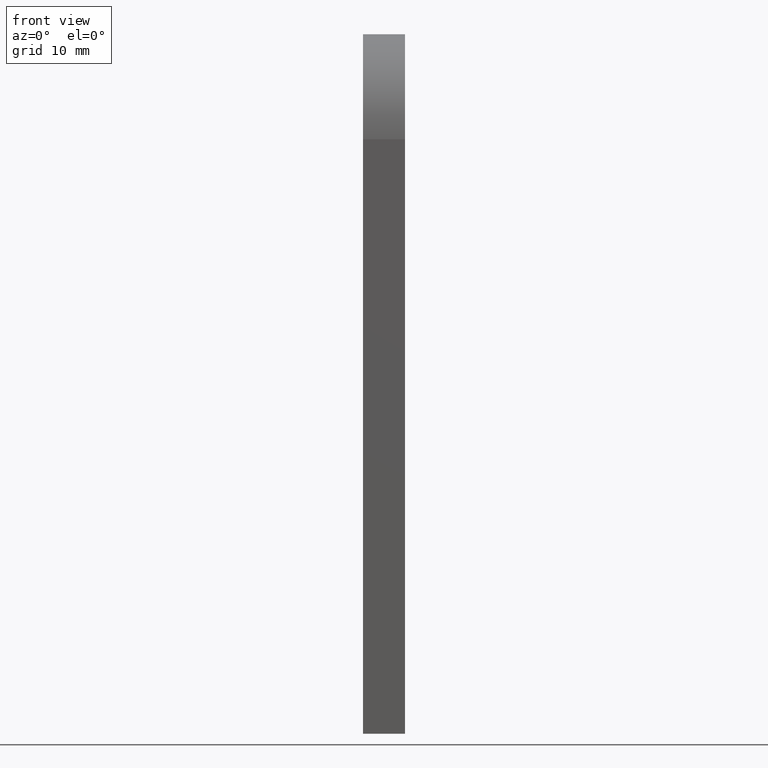
[diagram: clean part render]
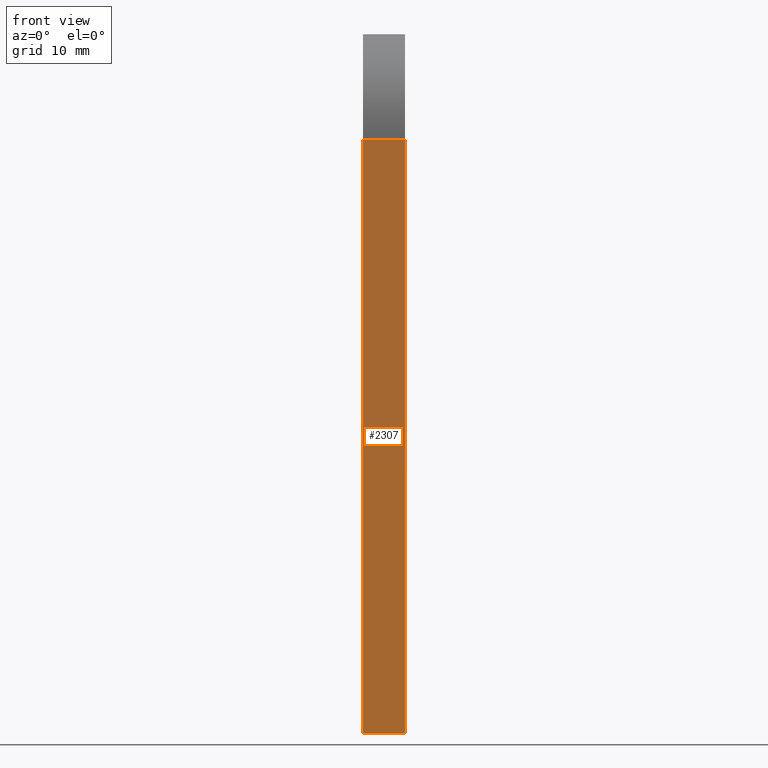
[diagram: same view with one face highlighted and labeled with its STEP entity id]
A machine part, front view. The second image highlights one B-rep face of the part: STEP entity #2307.
In plain terms, the highlighted planar face has unit normal (0, -1, -0).
Its self-contained STEP definition (entity closure, byte-faithful):
#86 = CARTESIAN_POINT ( 'NONE',  ( 3.000000000000000000, -15.00000000000000000, -3.061616997868383000E-015 ) ) ;
#116 = VECTOR ( 'NONE', #5623, 1000.000000000000000 ) ;
#273 = VECTOR ( 'NONE', #607, 1000.000000000000000 ) ;
#607 = DIRECTION ( 'NONE',  ( 0.0000000000000000000, -2.040851148208008500E-017, 1.000000000000000000 ) ) ;
#756 = AXIS2_PLACEMENT_3D ( 'NONE', #11112, #2387, #9103 ) ;
#815 = VERTEX_POINT ( 'NONE', #9025 ) ;
#907 = CARTESIAN_POINT ( 'NONE',  ( -3.000000000000000000, -15.00000000000000000, -3.061616997868383000E-015 ) ) ;
#1216 = PLANE ( 'NONE',  #756 ) ;
#2093 = VERTEX_POINT ( 'NONE', #907 ) ;
#2307 = ADVANCED_FACE ( 'NONE', ( #4670 ), #1216, .T. ) ;
#2387 = DIRECTION ( 'NONE',  ( 0.0000000000000000000, -1.000000000000000000, -2.040851148208008500E-017 ) ) ;
#2523 = CARTESIAN_POINT ( 'NONE',  ( -3.000000000000000000, -15.00000000000000000, -3.061616997868383000E-015 ) ) ;
#2643 = ORIENTED_EDGE ( 'NONE', *, *, #9939, .T. ) ;
#3187 = DIRECTION ( 'NONE',  ( -1.000000000000000000, -0.0000000000000000000, -0.0000000000000000000 ) ) ;
#3808 = VERTEX_POINT ( 'NONE', #6683 ) ;
#4163 = CARTESIAN_POINT ( 'NONE',  ( 3.000000000000000000, -15.00000000000000200, 84.99999999999998600 ) ) ;
#4670 = FACE_OUTER_BOUND ( 'NONE', #5656, .T. ) ;
#4765 = LINE ( 'NONE', #2523, #273 ) ;
#5327 = CARTESIAN_POINT ( 'NONE',  ( 3.000000000000000000, -15.00000000000000000, -3.061616997868383000E-015 ) ) ;
#5623 = DIRECTION ( 'NONE',  ( 0.0000000000000000000, -2.040851148208008500E-017, 1.000000000000000000 ) ) ;
#5656 = EDGE_LOOP ( 'NONE', ( #12102, #11842, #2643, #6589 ) ) ;
#5772 = EDGE_CURVE ( 'NONE', #7181, #2093, #11054, .T. ) ;
#5788 = EDGE_CURVE ( 'NONE', #3808, #815, #6481, .T. ) ;
#5997 = LINE ( 'NONE', #5327, #116 ) ;
#6023 = EDGE_CURVE ( 'NONE', #2093, #815, #4765, .T. ) ;
#6481 = LINE ( 'NONE', #4163, #7681 ) ;
#6589 = ORIENTED_EDGE ( 'NONE', *, *, #5788, .T. ) ;
#6683 = CARTESIAN_POINT ( 'NONE',  ( 3.000000000000000000, -15.00000000000000200, 84.99999999999998600 ) ) ;
#6913 = CARTESIAN_POINT ( 'NONE',  ( 3.000000000000000000, -15.00000000000000000, -3.061616997868383000E-015 ) ) ;
#7181 = VERTEX_POINT ( 'NONE', #6913 ) ;
#7529 = VECTOR ( 'NONE', #3187, 1000.000000000000000 ) ;
#7681 = VECTOR ( 'NONE', #11953, 1000.000000000000000 ) ;
#9025 = CARTESIAN_POINT ( 'NONE',  ( -3.000000000000000000, -15.00000000000000200, 84.99999999999998600 ) ) ;
#9103 = DIRECTION ( 'NONE',  ( 0.0000000000000000000, 2.040851148208008500E-017, -1.000000000000000000 ) ) ;
#9939 = EDGE_CURVE ( 'NONE', #7181, #3808, #5997, .T. ) ;
#11054 = LINE ( 'NONE', #86, #7529 ) ;
#11112 = CARTESIAN_POINT ( 'NONE',  ( 3.000000000000000000, -15.00000000000000000, -3.061616997868383000E-015 ) ) ;
#11842 = ORIENTED_EDGE ( 'NONE', *, *, #5772, .F. ) ;
#11953 = DIRECTION ( 'NONE',  ( -1.000000000000000000, -0.0000000000000000000, -0.0000000000000000000 ) ) ;
#12102 = ORIENTED_EDGE ( 'NONE', *, *, #6023, .F. ) ;